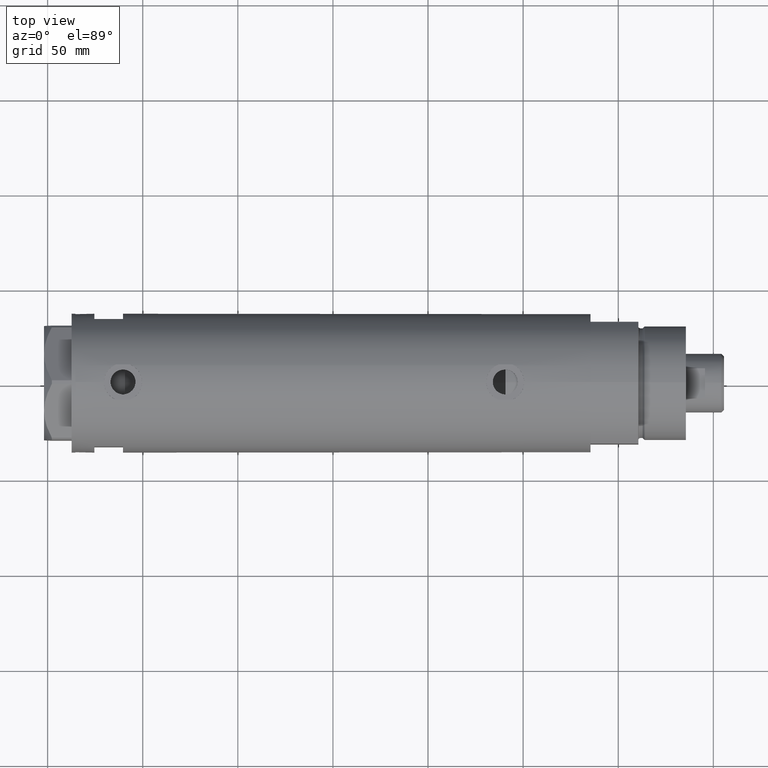
[diagram: clean part render]
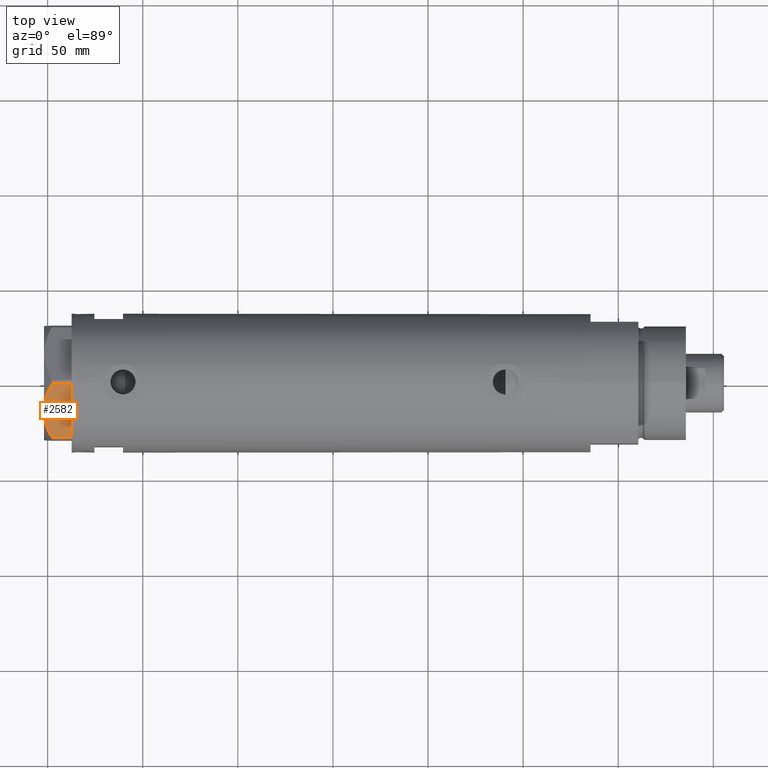
[diagram: same view with one face highlighted and labeled with its STEP entity id]
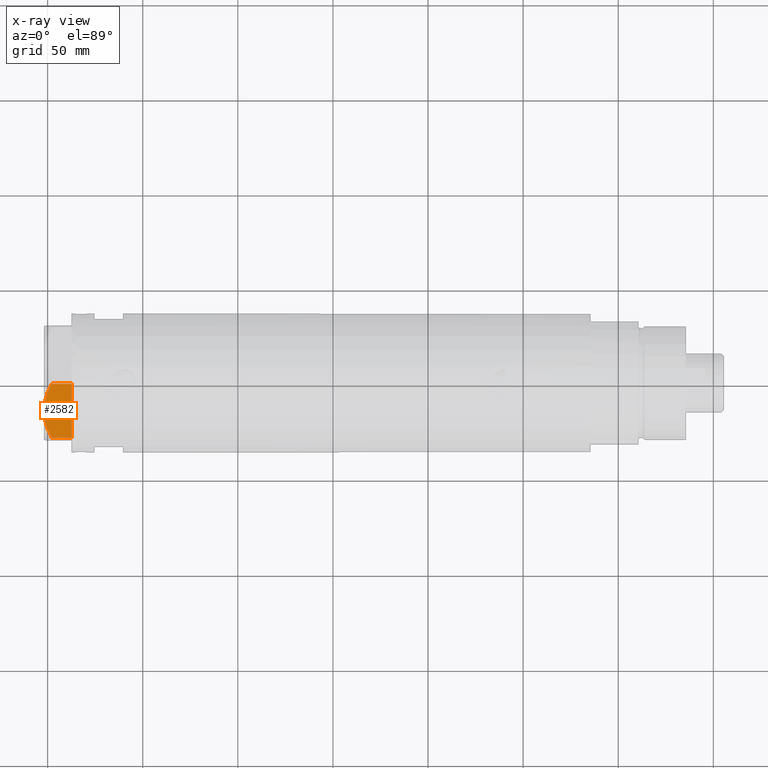
[diagram: x-ray of the same camera — body ghosted, the highlighted face saturated]
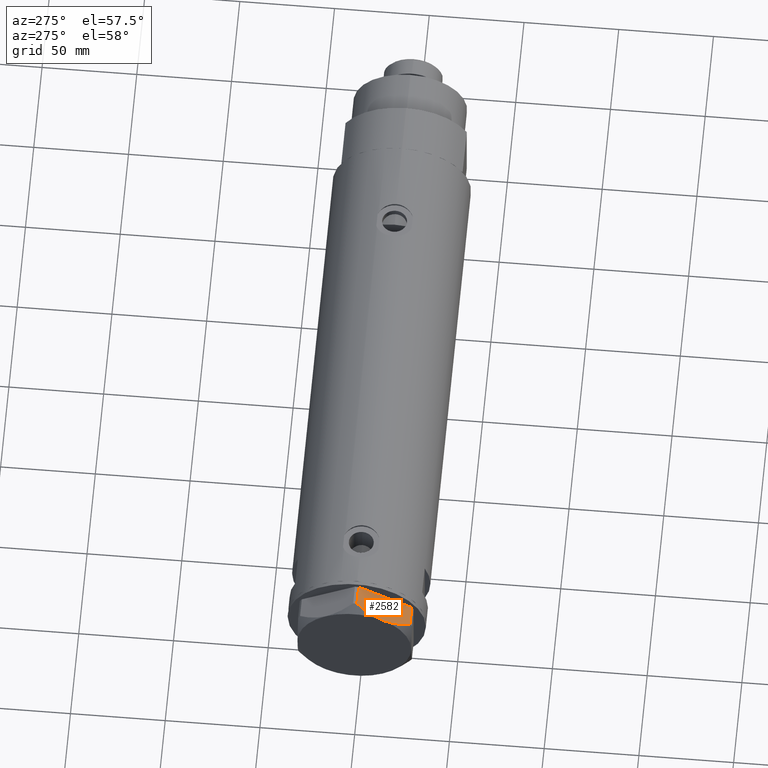
[diagram: same view with one face highlighted and labeled with its STEP entity id]
A machine part, top view. The second image highlights one B-rep face of the part: STEP entity #2582.
The next image is the same camera in x-ray: the body ghosted, the highlighted face saturated — about 0% of this face is hidden behind the body in this view.
A second angle (auxiliary view) of the same face is appended — the face is thin or edge-on in the first view.
In plain terms, the highlighted planar face has unit normal (-0, 0.5, -0.866).
Its self-contained STEP definition (entity closure, byte-faithful):
#378 = FACE_OUTER_BOUND ( 'NONE', #2028, .T. ) ;
#578 = CARTESIAN_POINT ( 'NONE',  ( -16.22616138060132940, -25.27283751037305137, 14.47500996539161910 ) ) ;
#1015 = DIRECTION ( 'NONE',  ( 0.8660254037844387076, -0.4999999999999997780, 0.000000000000000000 ) ) ;
#1037 = CARTESIAN_POINT ( 'NONE',  ( -29.03005154776157326, -17.88050807568868805, 10.40518423703595374 ) ) ;
#1083 = VERTEX_POINT ( 'NONE', #3066 ) ;
#1155 = EDGE_CURVE ( 'NONE', #1648, #2444, #4111, .T. ) ;
#1248 = ORIENTED_EDGE ( 'NONE', *, *, #5180, .T. ) ;
#1253 = CARTESIAN_POINT ( 'NONE',  ( -2.073315687465953960, -33.44398678110400169, 11.01056656432686509 ) ) ;
#1256 = VERTEX_POINT ( 'NONE', #3189 ) ;
#1261 = AXIS2_PLACEMENT_3D ( 'NONE', #3092, #3995, #1736 ) ;
#1510 = CARTESIAN_POINT ( 'NONE',  ( -19.88494945387373747, -23.16043523136143278, 14.00566141361761119 ) ) ;
#1614 = CARTESIAN_POINT ( 'NONE',  ( -29.03005154776141339, -17.88050807568878042, 0.000000000000000000 ) ) ;
#1648 = VERTEX_POINT ( 'NONE', #5380 ) ;
#1715 = DIRECTION ( 'NONE',  ( -0.000000000000000000, 0.000000000000000000, -1.000000000000000000 ) ) ;
#1736 = DIRECTION ( 'NONE',  ( -0.8660254037844387076, 0.4999999999999997780, 0.000000000000000000 ) ) ;
#1900 = LINE ( 'NONE', #3704, #4545 ) ;
#1963 = CARTESIAN_POINT ( 'NONE',  ( -26.82462797925472842, -19.15380996664326219, 11.61522964162834626 ) ) ;
#2028 = EDGE_LOOP ( 'NONE', ( #2042, #2828, #5251, #1248, #4471 ) ) ;
#2042 = ORIENTED_EDGE ( 'NONE', *, *, #4899, .F. ) ;
#2055 = VERTEX_POINT ( 'NONE', #1614 ) ;
#2140 = CARTESIAN_POINT ( 'NONE',  ( -6.639151835533460222, -30.80790005194150183, 12.99122625442232604 ) ) ;
#2183 = LINE ( 'NONE', #3262, #2671 ) ;
#2189 = B_SPLINE_CURVE_WITH_KNOTS ( 'NONE', 3,
 ( #1037, #1963, #3738, #4733, #1510, #2774, #4610, #578, #4281, #4216 ),
 .UNSPECIFIED., .F., .F.,
 ( 4, 2, 2, 2, 4 ),
 ( 0.001230196178133391958, 0.009592363676680756152, 0.01377344742595443955, 0.01586398930059127951, 0.01795453117522812295 ),
 .UNSPECIFIED. ) ;
#2277 = EDGE_CURVE ( 'NONE', #2055, #1256, #2183, .T. ) ;
#2444 = VERTEX_POINT ( 'NONE', #4417 ) ;
#2582 = ADVANCED_FACE ( 'NONE', ( #378 ), #4483, .F. ) ;
#2671 = VECTOR ( 'NONE', #1015, 1000.000000000000227 ) ;
#2774 = CARTESIAN_POINT ( 'NONE',  ( -18.07068105770097688, -24.20790357827401351, 14.29910535634586921 ) ) ;
#2828 = ORIENTED_EDGE ( 'NONE', *, *, #5856, .T. ) ;
#3066 = CARTESIAN_POINT ( 'NONE',  ( -29.03005154776157326, -17.88050807568868805, 10.40518423703595374 ) ) ;
#3092 = CARTESIAN_POINT ( 'NONE',  ( -30.00000000000000000, -17.32050807568877460, 14.50000000000000000 ) ) ;
#3113 = CARTESIAN_POINT ( 'NONE',  ( -10.17780078270465616, -28.76486012972462447, 14.10092492974135148 ) ) ;
#3189 = CARTESIAN_POINT ( 'NONE',  ( -0.9699484522385886098, -34.08101615137752560, 0.000000000000000000 ) ) ;
#3262 = CARTESIAN_POINT ( 'NONE',  ( -30.00000000000000000, -17.32050807568877460, 0.000000000000000000 ) ) ;
#3475 = CARTESIAN_POINT ( 'NONE',  ( -7.227334865371702222, -30.46831242133162476, 13.19311392138147276 ) ) ;
#3540 = CARTESIAN_POINT ( 'NONE',  ( -3.192653970405496811, -32.79773652213460622, 11.56973717813738745 ) ) ;
#3704 = CARTESIAN_POINT ( 'NONE',  ( -0.9699484522385850571, -34.08101615137752560, 14.50000000000000000 ) ) ;
#3738 = CARTESIAN_POINT ( 'NONE',  ( -24.56959650245797988, -20.45575299680293568, 12.63511531451932512 ) ) ;
#3956 = CARTESIAN_POINT ( 'NONE',  ( -4.902385341342997194, -31.81062265488187535, 12.31959434659020758 ) ) ;
#3995 = DIRECTION ( 'NONE',  ( 0.4999999999999998335, 0.8660254037844388186, -0.000000000000000000 ) ) ;
#4111 = B_SPLINE_CURVE_WITH_KNOTS ( 'NONE', 3,
 ( #5391, #4876, #3113, #3475, #2140, #5301, #3956, #3540, #1253, #5816 ),
 .UNSPECIFIED., .F., .F.,
 ( 4, 2, 2, 2, 4 ),
 ( 0.01795453117522812295, 0.02625795893839792672, 0.02833381587919037853, 0.03040967281998283034, 0.03456138670156772702 ),
 .UNSPECIFIED. ) ;
#4158 = VECTOR ( 'NONE', #1715, 1000.000000000000000 ) ;
#4216 = CARTESIAN_POINT ( 'NONE',  ( -14.99999999999999645, -25.98076211353316367, 14.50000000000000000 ) ) ;
#4281 = CARTESIAN_POINT ( 'NONE',  ( -15.61187731150016411, -25.62749458302751648, 14.50000000000000355 ) ) ;
#4417 = CARTESIAN_POINT ( 'NONE',  ( -0.9699484522385841689, -34.08101615137752560, 10.40518423703605322 ) ) ;
#4471 = ORIENTED_EDGE ( 'NONE', *, *, #1155, .F. ) ;
#4483 = PLANE ( 'NONE',  #1261 ) ;
#4512 = LINE ( 'NONE', #5485, #4158 ) ;
#4545 = VECTOR ( 'NONE', #5105, 1000.000000000000000 ) ;
#4610 = CARTESIAN_POINT ( 'NONE',  ( -17.45962150578836258, -24.56069897506165489, 14.37423503257922164 ) ) ;
#4733 = CARTESIAN_POINT ( 'NONE',  ( -21.07077273125423744, -22.47579984295447630, 13.71922620632299150 ) ) ;
#4876 = CARTESIAN_POINT ( 'NONE',  ( -12.56968319190124639, -27.38390617690504669, 14.50000000000000711 ) ) ;
#4899 = EDGE_CURVE ( 'NONE', #1083, #1648, #2189, .T. ) ;
#5105 = DIRECTION ( 'NONE',  ( 0.000000000000000000, 0.000000000000000000, 1.000000000000000000 ) ) ;
#5180 = EDGE_CURVE ( 'NONE', #1256, #2444, #1900, .T. ) ;
#5251 = ORIENTED_EDGE ( 'NONE', *, *, #2277, .T. ) ;
#5301 = CARTESIAN_POINT ( 'NONE',  ( -5.477433827011700451, -31.47861825688396564, 12.55468001512206300 ) ) ;
#5380 = CARTESIAN_POINT ( 'NONE',  ( -14.99999999999999645, -25.98076211353316367, 14.50000000000000000 ) ) ;
#5391 = CARTESIAN_POINT ( 'NONE',  ( -14.99999999999999645, -25.98076211353316367, 14.50000000000000000 ) ) ;
#5485 = CARTESIAN_POINT ( 'NONE',  ( -29.03005154776141339, -17.88050807568878042, 14.50000000000000000 ) ) ;
#5816 = CARTESIAN_POINT ( 'NONE',  ( -0.9699484522385841689, -34.08101615137752560, 10.40518423703605322 ) ) ;
#5856 = EDGE_CURVE ( 'NONE', #1083, #2055, #4512, .T. ) ;